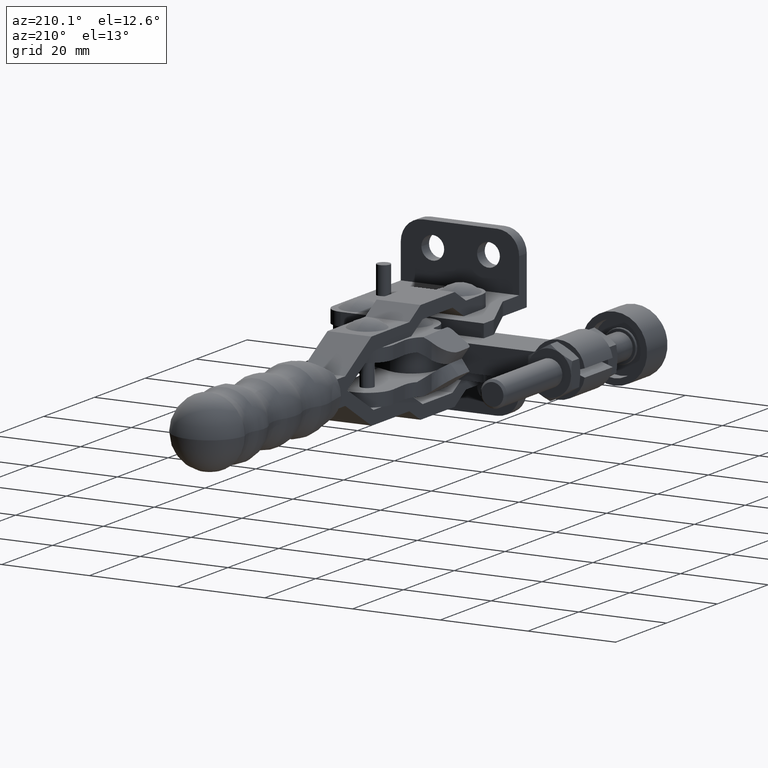
[diagram: clean part render]
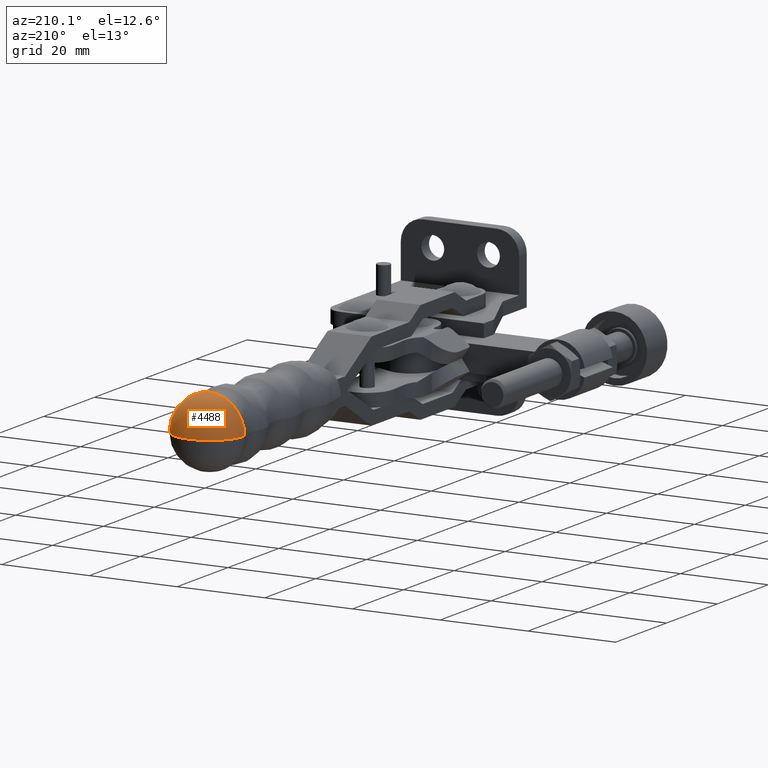
[diagram: same view with one face highlighted and labeled with its STEP entity id]
A machine part, auxiliary view. The second image highlights one B-rep face of the part: STEP entity #4488.
In plain terms, the highlighted spherical surface has radius 8 mm.
Its self-contained STEP definition (entity closure, byte-faithful):
#32 = AXIS2_PLACEMENT_3D ( 'NONE', #699, #6272, #1493 ) ;
#71 = AXIS2_PLACEMENT_3D ( 'NONE', #6812, #6154, #1361 ) ;
#233 = CARTESIAN_POINT ( 'NONE',  ( -22.48512854818778800, 117.0087659602287000, -2.999999999999604800 ) ) ;
#541 = VERTEX_POINT ( 'NONE', #3250 ) ;
#699 = CARTESIAN_POINT ( 'NONE',  ( -22.48512854818779900, 117.0087659602287100, -2.999999999999604800 ) ) ;
#1018 = DIRECTION ( 'NONE',  ( 1.417256024401658000E-016, -3.866584808529460500E-015, 1.000000000000000000 ) ) ;
#1023 = DIRECTION ( 'NONE',  ( 0.9999875988200825900, 0.004980181326595999600, 0.0000000000000000000 ) ) ;
#1135 = VERTEX_POINT ( 'NONE', #10237 ) ;
#1361 = DIRECTION ( 'NONE',  ( 0.9999875988200823700, 0.004980181326596009100, 0.0000000000000000000 ) ) ;
#1493 = DIRECTION ( 'NONE',  ( 0.0000000000000000000, 1.000000000000000000, 3.848917712323537600E-015 ) ) ;
#2522 = FACE_OUTER_BOUND ( 'NONE', #3253, .T. ) ;
#3012 = AXIS2_PLACEMENT_3D ( 'NONE', #233, #5816, #1023 ) ;
#3250 = CARTESIAN_POINT ( 'NONE',  ( -14.48522775762709500, 117.0486074108414700, -2.999999999999604800 ) ) ;
#3253 = EDGE_LOOP ( 'NONE', ( #8653, #8995, #5906 ) ) ;
#3344 = CIRCLE ( 'NONE', #9623, 8.000000000000007100 ) ;
#3897 = SPHERICAL_SURFACE ( 'NONE', #71, 8.000000000000007100 ) ;
#4206 = CIRCLE ( 'NONE', #3012, 8.000000000000023100 ) ;
#4488 = ADVANCED_FACE ( 'NONE', ( #2522 ), #3897, .T. ) ;
#5808 = CARTESIAN_POINT ( 'NONE',  ( -22.48512854818779900, 117.0087659602287100, -2.999999999999604800 ) ) ;
#5816 = DIRECTION ( 'NONE',  ( 0.004980181326596481800, -0.9999875988200825900, -3.867242677514357300E-015 ) ) ;
#5906 = ORIENTED_EDGE ( 'NONE', *, *, #6705, .F. ) ;
#6154 = DIRECTION ( 'NONE',  ( 1.925956976797215500E-017, -3.867194719142129100E-015, 1.000000000000000000 ) ) ;
#6272 = DIRECTION ( 'NONE',  ( -1.926244123195963700E-017, 3.867194704841539500E-015, -1.000000000000000000 ) ) ;
#6452 = EDGE_CURVE ( 'NONE', #9271, #541, #8902, .T. ) ;
#6592 = DIRECTION ( 'NONE',  ( 0.0000000000000000000, -1.000000000000000000, -3.848917712323537600E-015 ) ) ;
#6705 = EDGE_CURVE ( 'NONE', #541, #1135, #4206, .T. ) ;
#6812 = CARTESIAN_POINT ( 'NONE',  ( -22.48512854818779900, 117.0087659602287100, -2.999999999999604800 ) ) ;
#6911 = CARTESIAN_POINT ( 'NONE',  ( -22.52496999880056800, 125.0086667507893900, -2.999999999999573700 ) ) ;
#7116 = EDGE_CURVE ( 'NONE', #9271, #1135, #3344, .T. ) ;
#8653 = ORIENTED_EDGE ( 'NONE', *, *, #6452, .F. ) ;
#8902 = CIRCLE ( 'NONE', #32, 8.000000000000007100 ) ;
#8995 = ORIENTED_EDGE ( 'NONE', *, *, #7116, .T. ) ;
#9271 = VERTEX_POINT ( 'NONE', #6911 ) ;
#9623 = AXIS2_PLACEMENT_3D ( 'NONE', #5808, #1018, #6592 ) ;
#10237 = CARTESIAN_POINT ( 'NONE',  ( -30.48502933874847900, 116.9689245096159300, -2.999999999999603900 ) ) ;